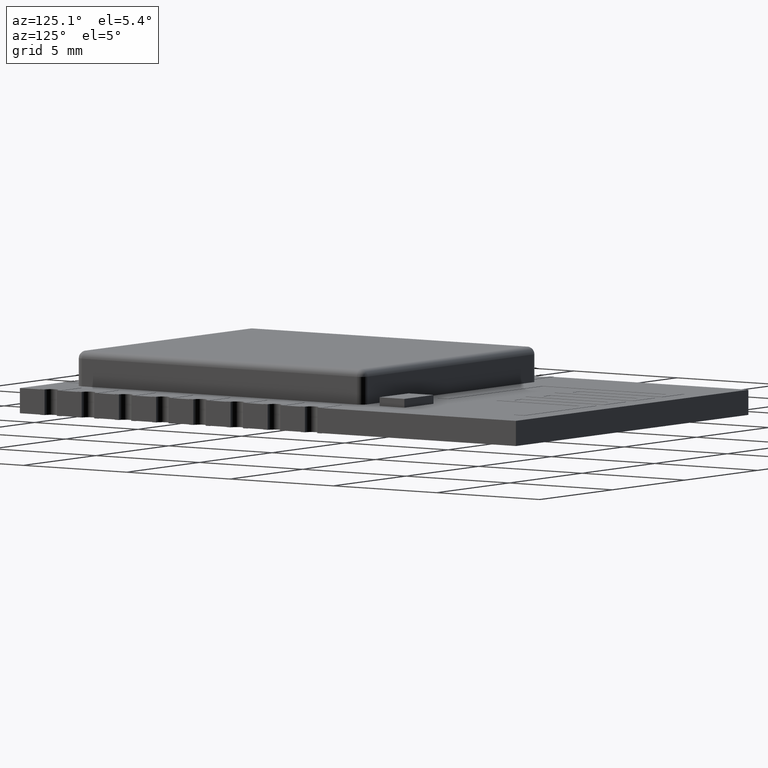
[diagram: clean part render]
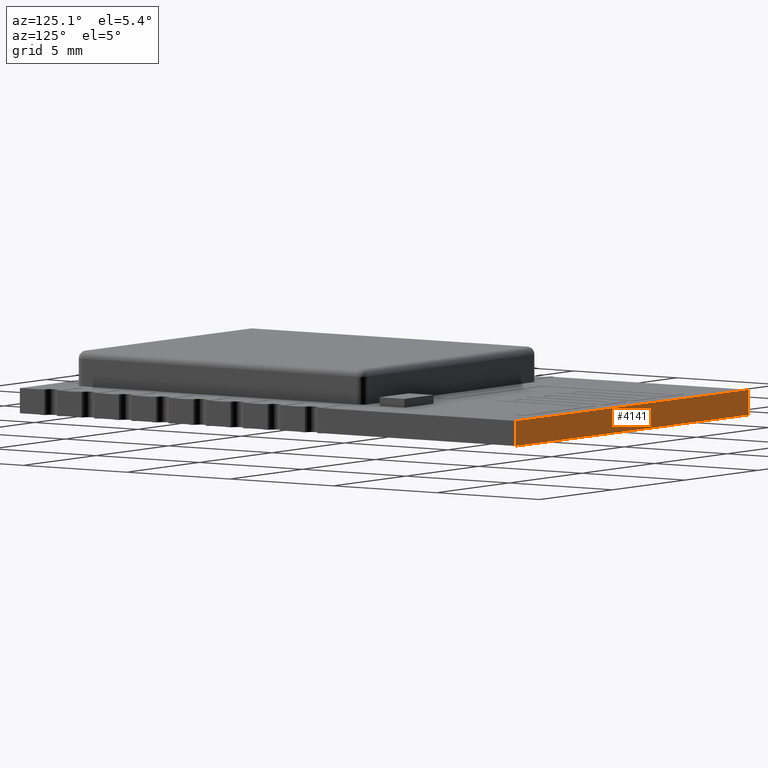
[diagram: same view with one face highlighted and labeled with its STEP entity id]
A machine part, auxiliary view. The second image highlights one B-rep face of the part: STEP entity #4141.
In plain terms, the highlighted planar face has unit normal (0, -1, 0).
Its self-contained STEP definition (entity closure, byte-faithful):
#202 = PLANE('',#203);
#203 = AXIS2_PLACEMENT_3D('',#204,#205,#206);
#204 = CARTESIAN_POINT('',(8.,12.,1.));
#205 = DIRECTION('',(0.,0.,1.));
#206 = DIRECTION('',(1.,3.06161699786E-17,0.));
#345 = VERTEX_POINT('',#346);
#346 = CARTESIAN_POINT('',(16.,24.,1.));
#360 = PLANE('',#361);
#361 = AXIS2_PLACEMENT_3D('',#362,#363,#364);
#362 = CARTESIAN_POINT('',(16.,0.,0.));
#363 = DIRECTION('',(-1.,-3.06161699786E-17,0.));
#364 = DIRECTION('',(-3.06161699786E-17,1.,0.));
#372 = EDGE_CURVE('',#345,#373,#375,.T.);
#373 = VERTEX_POINT('',#374);
#374 = CARTESIAN_POINT('',(0.,24.,1.));
#375 = SURFACE_CURVE('',#376,(#380,#387),.PCURVE_S1.);
#376 = LINE('',#377,#378);
#377 = CARTESIAN_POINT('',(16.,24.,1.));
#378 = VECTOR('',#379,1.);
#379 = DIRECTION('',(-1.,-3.06161699786E-17,0.));
#380 = PCURVE('',#202,#381);
#381 = DEFINITIONAL_REPRESENTATION('',(#382),#386);
#382 = LINE('',#383,#384);
#383 = CARTESIAN_POINT('',(8.,12.));
#384 = VECTOR('',#385,1.);
#385 = DIRECTION('',(-1.,0.));
#386 = ( GEOMETRIC_REPRESENTATION_CONTEXT(2) 
PARAMETRIC_REPRESENTATION_CONTEXT() REPRESENTATION_CONTEXT('2D SPACE',''
  ) );
#387 = PCURVE('',#388,#393);
#388 = PLANE('',#389);
#389 = AXIS2_PLACEMENT_3D('',#390,#391,#392);
#390 = CARTESIAN_POINT('',(16.,24.,0.));
#391 = DIRECTION('',(3.06161699786E-17,-1.,0.));
#392 = DIRECTION('',(-1.,-3.06161699786E-17,0.));
#393 = DEFINITIONAL_REPRESENTATION('',(#394),#398);
#394 = LINE('',#395,#396);
#395 = CARTESIAN_POINT('',(0.,-1.));
#396 = VECTOR('',#397,1.);
#397 = DIRECTION('',(1.,-0.));
#398 = ( GEOMETRIC_REPRESENTATION_CONTEXT(2) 
PARAMETRIC_REPRESENTATION_CONTEXT() REPRESENTATION_CONTEXT('2D SPACE',''
  ) );
#416 = PLANE('',#417);
#417 = AXIS2_PLACEMENT_3D('',#418,#419,#420);
#418 = CARTESIAN_POINT('',(0.,24.,0.));
#419 = DIRECTION('',(1.,3.06161699786E-17,0.));
#420 = DIRECTION('',(3.06161699786E-17,-1.,0.));
#3986 = VERTEX_POINT('',#3987);
#3987 = CARTESIAN_POINT('',(16.,24.,0.));
#4001 = PLANE('',#4002);
#4002 = AXIS2_PLACEMENT_3D('',#4003,#4004,#4005);
#4003 = CARTESIAN_POINT('',(8.,12.,0.));
#4004 = DIRECTION('',(0.,0.,1.));
#4005 = DIRECTION('',(1.,3.06161699786E-17,0.));
#4040 = EDGE_CURVE('',#3986,#345,#4041,.T.);
#4041 = SURFACE_CURVE('',#4042,(#4046,#4053),.PCURVE_S1.);
#4042 = LINE('',#4043,#4044);
#4043 = CARTESIAN_POINT('',(16.,24.,0.));
#4044 = VECTOR('',#4045,1.);
#4045 = DIRECTION('',(0.,0.,1.));
#4046 = PCURVE('',#360,#4047);
#4047 = DEFINITIONAL_REPRESENTATION('',(#4048),#4052);
#4048 = LINE('',#4049,#4050);
#4049 = CARTESIAN_POINT('',(24.,0.));
#4050 = VECTOR('',#4051,1.);
#4051 = DIRECTION('',(0.,-1.));
#4052 = ( GEOMETRIC_REPRESENTATION_CONTEXT(2) 
PARAMETRIC_REPRESENTATION_CONTEXT() REPRESENTATION_CONTEXT('2D SPACE',''
  ) );
#4053 = PCURVE('',#388,#4054);
#4054 = DEFINITIONAL_REPRESENTATION('',(#4055),#4059);
#4055 = LINE('',#4056,#4057);
#4056 = CARTESIAN_POINT('',(0.,0.));
#4057 = VECTOR('',#4058,1.);
#4058 = DIRECTION('',(0.,-1.));
#4059 = ( GEOMETRIC_REPRESENTATION_CONTEXT(2) 
PARAMETRIC_REPRESENTATION_CONTEXT() REPRESENTATION_CONTEXT('2D SPACE',''
  ) );
#4141 = ADVANCED_FACE('',(#4142),#388,.F.);
#4142 = FACE_BOUND('',#4143,.F.);
#4143 = EDGE_LOOP('',(#4144,#4145,#4146,#4169));
#4144 = ORIENTED_EDGE('',*,*,#4040,.T.);
#4145 = ORIENTED_EDGE('',*,*,#372,.T.);
#4146 = ORIENTED_EDGE('',*,*,#4147,.F.);
#4147 = EDGE_CURVE('',#4148,#373,#4150,.T.);
#4148 = VERTEX_POINT('',#4149);
#4149 = CARTESIAN_POINT('',(0.,24.,0.));
#4150 = SURFACE_CURVE('',#4151,(#4155,#4162),.PCURVE_S1.);
#4151 = LINE('',#4152,#4153);
#4152 = CARTESIAN_POINT('',(0.,24.,0.));
#4153 = VECTOR('',#4154,1.);
#4154 = DIRECTION('',(0.,0.,1.));
#4155 = PCURVE('',#388,#4156);
#4156 = DEFINITIONAL_REPRESENTATION('',(#4157),#4161);
#4157 = LINE('',#4158,#4159);
#4158 = CARTESIAN_POINT('',(16.,-0.));
#4159 = VECTOR('',#4160,1.);
#4160 = DIRECTION('',(0.,-1.));
#4161 = ( GEOMETRIC_REPRESENTATION_CONTEXT(2) 
PARAMETRIC_REPRESENTATION_CONTEXT() REPRESENTATION_CONTEXT('2D SPACE',''
  ) );
#4162 = PCURVE('',#416,#4163);
#4163 = DEFINITIONAL_REPRESENTATION('',(#4164),#4168);
#4164 = LINE('',#4165,#4166);
#4165 = CARTESIAN_POINT('',(0.,0.));
#4166 = VECTOR('',#4167,1.);
#4167 = DIRECTION('',(0.,-1.));
#4168 = ( GEOMETRIC_REPRESENTATION_CONTEXT(2) 
PARAMETRIC_REPRESENTATION_CONTEXT() REPRESENTATION_CONTEXT('2D SPACE',''
  ) );
#4169 = ORIENTED_EDGE('',*,*,#4170,.F.);
#4170 = EDGE_CURVE('',#3986,#4148,#4171,.T.);
#4171 = SURFACE_CURVE('',#4172,(#4176,#4183),.PCURVE_S1.);
#4172 = LINE('',#4173,#4174);
#4173 = CARTESIAN_POINT('',(16.,24.,0.));
#4174 = VECTOR('',#4175,1.);
#4175 = DIRECTION('',(-1.,-3.06161699786E-17,0.));
#4176 = PCURVE('',#388,#4177);
#4177 = DEFINITIONAL_REPRESENTATION('',(#4178),#4182);
#4178 = LINE('',#4179,#4180);
#4179 = CARTESIAN_POINT('',(0.,0.));
#4180 = VECTOR('',#4181,1.);
#4181 = DIRECTION('',(1.,-0.));
#4182 = ( GEOMETRIC_REPRESENTATION_CONTEXT(2) 
PARAMETRIC_REPRESENTATION_CONTEXT() REPRESENTATION_CONTEXT('2D SPACE',''
  ) );
#4183 = PCURVE('',#4001,#4184);
#4184 = DEFINITIONAL_REPRESENTATION('',(#4185),#4189);
#4185 = LINE('',#4186,#4187);
#4186 = CARTESIAN_POINT('',(8.,12.));
#4187 = VECTOR('',#4188,1.);
#4188 = DIRECTION('',(-1.,0.));
#4189 = ( GEOMETRIC_REPRESENTATION_CONTEXT(2) 
PARAMETRIC_REPRESENTATION_CONTEXT() REPRESENTATION_CONTEXT('2D SPACE',''
  ) );